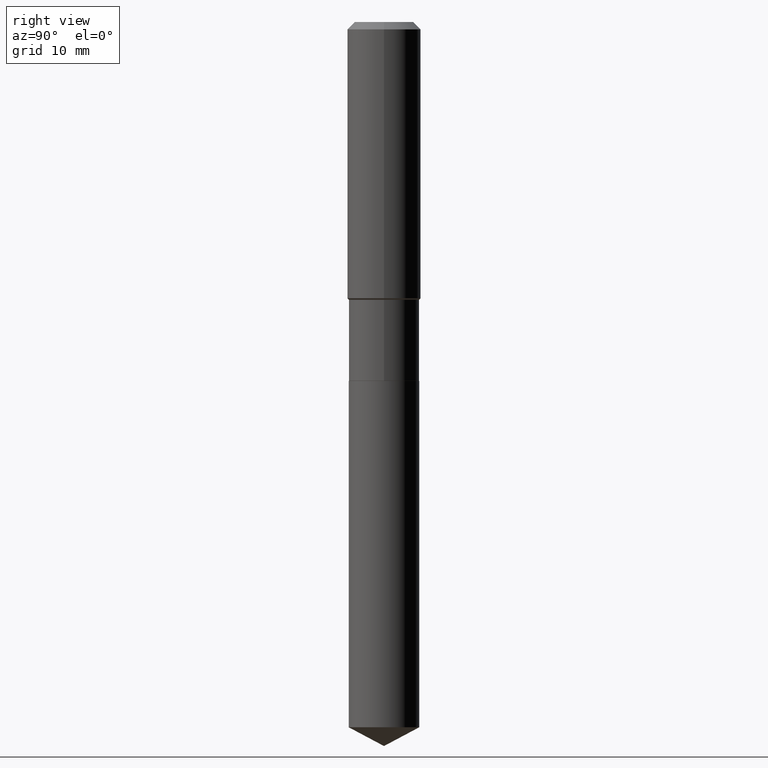
[diagram: clean part render]
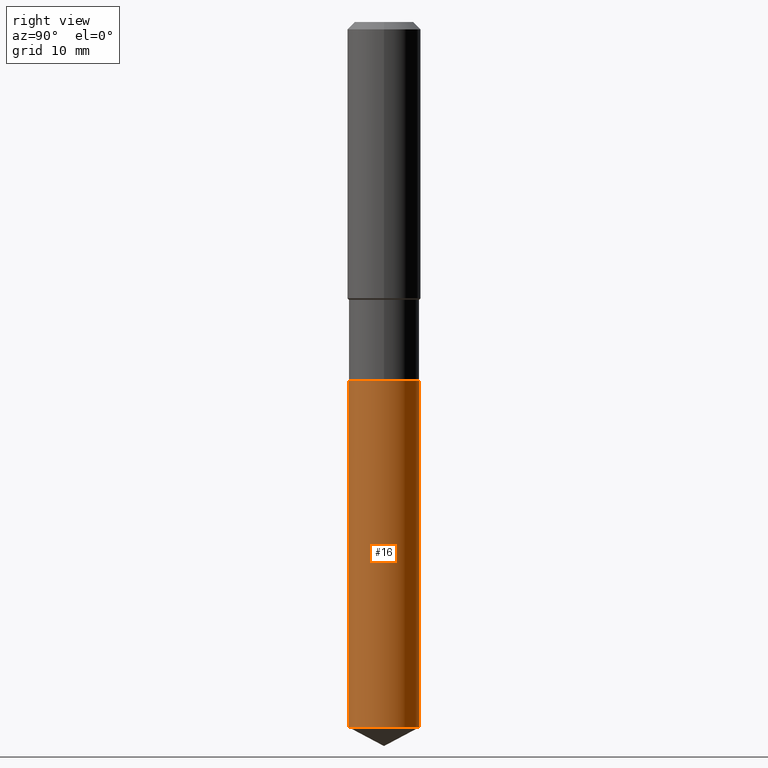
[diagram: same view with one face highlighted and labeled with its STEP entity id]
A machine part, right view. The second image highlights one B-rep face of the part: STEP entity #16.
In plain terms, the highlighted cylindrical surface (edge-blend (fillet) strip) has radius 5.7506 mm, axis along (-0, 0, 1).
Its self-contained STEP definition (entity closure, byte-faithful):
#10 = DIRECTION ( 'NONE',  ( -6.982962677686265922E-15, -1.000000000000000000, 3.619939920933211627E-15 ) ) ;
#12 = CIRCLE ( 'NONE', #157, 0.2263999999999999624 ) ;
#14 = ORIENTED_EDGE ( 'NONE', *, *, #430, .T. ) ;
#16 = ADVANCED_FACE ( 'NONE', ( #122 ), #27, .T. ) ;
#27 = CYLINDRICAL_SURFACE ( 'NONE', #102, 0.2263999999999999624 ) ;
#31 = VECTOR ( 'NONE', #350, 39.37007874015748143 ) ;
#43 = EDGE_LOOP ( 'NONE', ( #14, #204, #333, #316 ) ) ;
#65 = CARTESIAN_POINT ( 'NONE',  ( 1.608668753760977191E-15, 0.2263999999999919133, -2.303200000000000358 ) ) ;
#83 = VERTEX_POINT ( 'NONE', #434 ) ;
#93 = VECTOR ( 'NONE', #366, 39.37007874015748143 ) ;
#102 = AXIS2_PLACEMENT_3D ( 'NONE', #211, #357, #476 ) ;
#117 = CARTESIAN_POINT ( 'NONE',  ( -1.580942750228060187E-15, -0.2264000000000157831, -4.525320984671840741 ) ) ;
#122 = FACE_OUTER_BOUND ( 'NONE', #43, .T. ) ;
#124 = CARTESIAN_POINT ( 'NONE',  ( 5.632403754405604963E-29, -8.041579819623531161E-15, -2.303199999999999470 ) ) ;
#157 = AXIS2_PLACEMENT_3D ( 'NONE', #124, #232, #10 ) ;
#166 = CARTESIAN_POINT ( 'NONE',  ( 1.106659308370445826E-28, -1.579998530105374053E-14, -4.525320984671841629 ) ) ;
#180 = CIRCLE ( 'NONE', #437, 0.2263999999999999624 ) ;
#183 = VERTEX_POINT ( 'NONE', #117 ) ;
#187 = VERTEX_POINT ( 'NONE', #305 ) ;
#188 = DIRECTION ( 'NONE',  ( -2.445496607423183772E-29, 3.491441525887913744E-15, 1.000000000000000000 ) ) ;
#204 = ORIENTED_EDGE ( 'NONE', *, *, #450, .T. ) ;
#211 = CARTESIAN_POINT ( 'NONE',  ( 5.632403754405604963E-29, -8.041579819623531161E-15, -2.303199999999999470 ) ) ;
#232 = DIRECTION ( 'NONE',  ( -2.445496607423183772E-29, 3.491441525887913744E-15, 1.000000000000000000 ) ) ;
#289 = CARTESIAN_POINT ( 'NONE',  ( -1.580942750228114224E-15, -0.2264000000000080115, -2.303199999999998582 ) ) ;
#305 = CARTESIAN_POINT ( 'NONE',  ( -1.580942750228114224E-15, -0.2264000000000080115, -2.303199999999998582 ) ) ;
#316 = ORIENTED_EDGE ( 'NONE', *, *, #387, .F. ) ;
#333 = ORIENTED_EDGE ( 'NONE', *, *, #485, .F. ) ;
#350 = DIRECTION ( 'NONE',  ( -2.445496607423184052E-29, 3.491441525887913744E-15, 1.000000000000000000 ) ) ;
#357 = DIRECTION ( 'NONE',  ( -2.445496607423183772E-29, 3.491441525887913744E-15, 1.000000000000000000 ) ) ;
#366 = DIRECTION ( 'NONE',  ( -2.445496607423184052E-29, 3.491441525887913744E-15, 1.000000000000000000 ) ) ;
#381 = VERTEX_POINT ( 'NONE', #65 ) ;
#385 = LINE ( 'NONE', #424, #31 ) ;
#387 = EDGE_CURVE ( 'NONE', #183, #187, #487, .T. ) ;
#419 = DIRECTION ( 'NONE',  ( -6.982962677686265922E-15, -1.000000000000000000, 2.413293280622141084E-15 ) ) ;
#424 = CARTESIAN_POINT ( 'NONE',  ( 1.608668753760922760E-15, 0.2263999999999919410, -2.303200000000000358 ) ) ;
#430 = EDGE_CURVE ( 'NONE', #183, #83, #180, .T. ) ;
#434 = CARTESIAN_POINT ( 'NONE',  ( 1.608668753760976994E-15, 0.2263999999999841972, -4.525320984671841629 ) ) ;
#437 = AXIS2_PLACEMENT_3D ( 'NONE', #166, #188, #419 ) ;
#450 = EDGE_CURVE ( 'NONE', #83, #381, #385, .T. ) ;
#476 = DIRECTION ( 'NONE',  ( -6.982962677686265922E-15, -1.000000000000000000, 3.619939920933211627E-15 ) ) ;
#485 = EDGE_CURVE ( 'NONE', #187, #381, #12, .T. ) ;
#487 = LINE ( 'NONE', #289, #93 ) ;